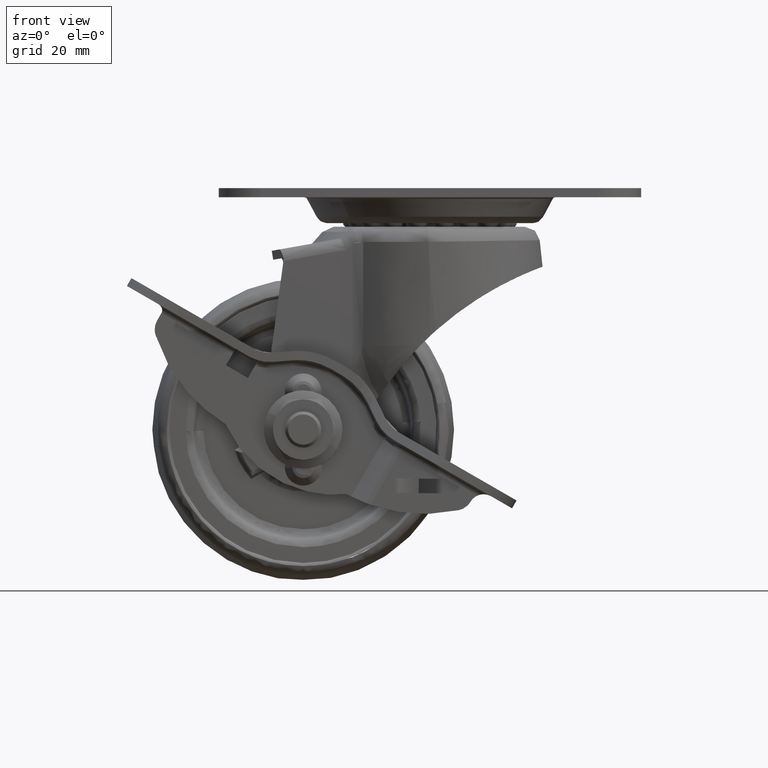
[diagram: clean part render]
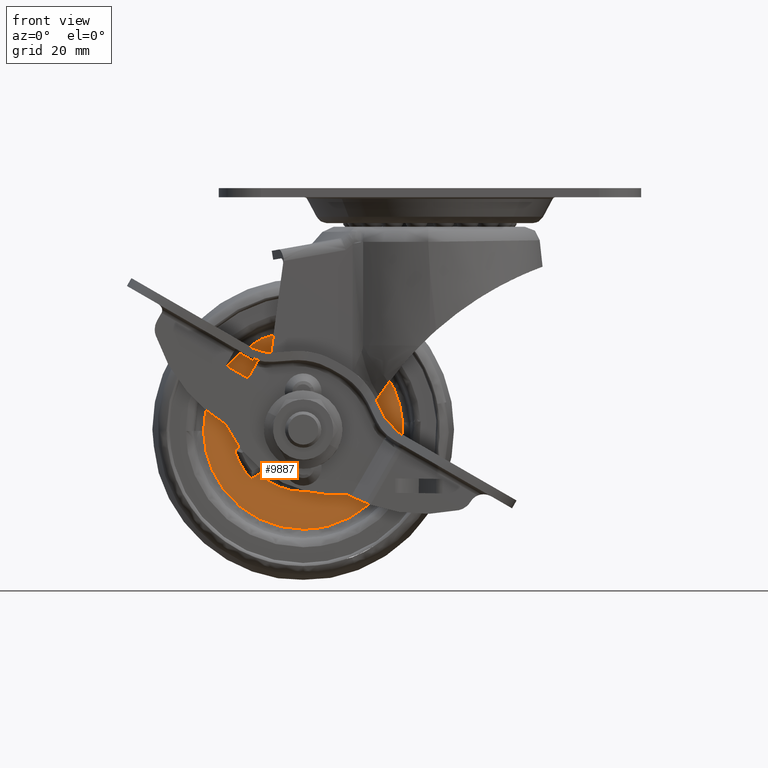
[diagram: same view with one face highlighted and labeled with its STEP entity id]
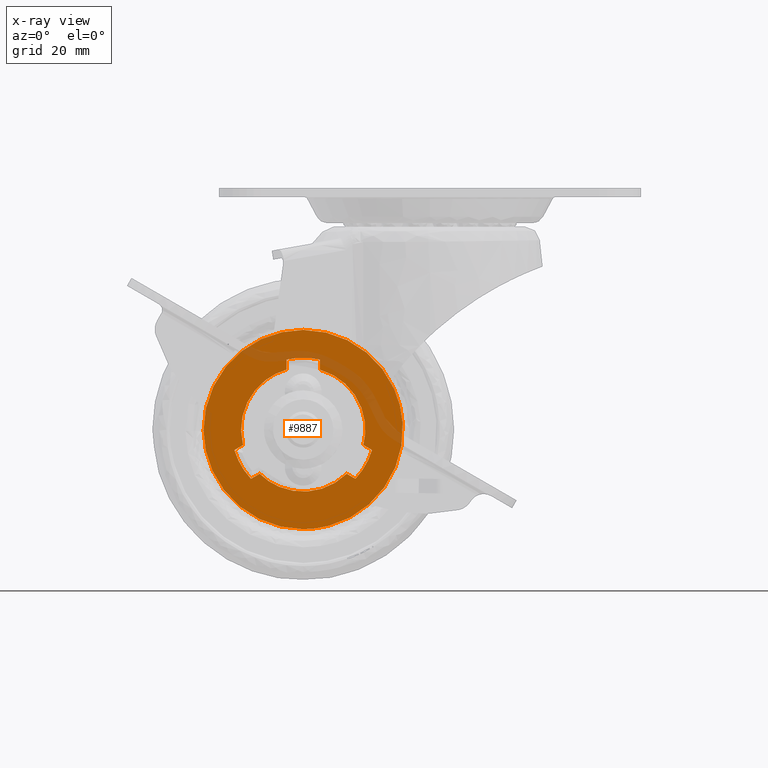
[diagram: x-ray of the same camera — body ghosted, the highlighted face saturated]
A machine part, front view. The second image highlights one B-rep face of the part: STEP entity #9887.
The next image is the same camera in x-ray: the body ghosted, the highlighted face saturated — about 10% of this face is hidden behind the body in this view.
In plain terms, the highlighted face is a freeform B-spline surface patch.
Its self-contained STEP definition (entity closure, byte-faithful):
#2704=CARTESIAN_POINT('',(-4.529568239445082,-5.500000000000000,-37.348660502389961));
#2705=VERTEX_POINT('',#2704);
#2706=CARTESIAN_POINT('',(-21.0,-5.500000000000000,-55.010624000000000));
#2707=VERTEX_POINT('',#2706);
#2708=CARTESIAN_POINT('',(-4.529568239445082,-5.500000000000000,-37.348660502389961));
#2709=CARTESIAN_POINT('',(-4.460597599564533,-5.500000000000008,-38.333797081240370));
#2710=CARTESIAN_POINT('',(-4.493241506175918,-5.499999999999992,-39.962397192461523));
#2711=CARTESIAN_POINT('',(-4.905086064747566,-5.499999999999983,-42.400860710447887));
#2712=CARTESIAN_POINT('',(-5.504628490725648,-5.500000000000058,-44.325987427348423));
#2713=CARTESIAN_POINT('',(-6.411072120631991,-5.499999999999944,-46.318784495756987));
#2714=CARTESIAN_POINT('',(-7.720407261650846,-5.500000000000049,-48.461351878689207));
#2715=CARTESIAN_POINT('',(-9.679324481444626,-5.499999999999964,-50.658695099832450));
#2716=CARTESIAN_POINT('',(-12.158563866516960,-5.500000000000016,-52.545214507012197));
#2717=CARTESIAN_POINT('',(-14.458394638954379,-5.499999999999991,-53.725635179056582));
#2718=CARTESIAN_POINT('',(-17.402730353129630,-5.500000000000013,-54.723834344807017));
#2719=CARTESIAN_POINT('',(-19.518608593575230,-5.500000000000036,-55.011156944525901));
#2720=CARTESIAN_POINT('',(-21.0,-5.500000000000000,-55.010624000000000));
#2721=B_SPLINE_CURVE_WITH_KNOTS('',3,(#2708,#2709,#2710,#2711,#2712,#2713,#2714,#2715,#2716,#2717,#2718,#2719,#2720),.UNSPECIFIED.,.F.,.U.,(4,1,1,1,1,1,1,1,1,1,4),(0.000000092941985,2.962625112459328,4.867208515689441,7.406648055346544,8.993790641163624,11.427426156438210,14.919052701691079,17.775921462710912,20.738601127774320,22.643183113495962,27.087148538172009),.UNSPECIFIED.);
#2722=EDGE_CURVE('',#2705,#2707,#2721,.T.);
#2724=CARTESIAN_POINT('',(-37.509320397508823,-5.500000000000000,-38.707473160194489));
#2725=VERTEX_POINT('',#2724);
#2726=CARTESIAN_POINT('',(-21.0,-5.500000000000000,-55.010624000000000));
#2727=CARTESIAN_POINT('',(-22.172479224277939,-5.500000000000011,-55.010820344088742));
#2728=CARTESIAN_POINT('',(-24.416832838631461,-5.499999999999990,-54.770507167628317));
#2729=CARTESIAN_POINT('',(-27.653923966060979,-5.500000000000015,-53.732246937157100));
#2730=CARTESIAN_POINT('',(-30.326662500615189,-5.499999999999965,-52.232482512722029));
#2731=CARTESIAN_POINT('',(-32.760673267305613,-5.500000000000031,-50.220246156976657));
#2732=CARTESIAN_POINT('',(-34.556307543205357,-5.500000000000157,-48.076787309013177));
#2733=CARTESIAN_POINT('',(-35.792683664852589,-5.499999999999745,-45.921149585764297));
#2734=CARTESIAN_POINT('',(-36.606531450412866,-5.500000000000048,-44.007601039840210));
#2735=CARTESIAN_POINT('',(-37.282735081782711,-5.499999999999986,-41.686226106281730));
#2736=CARTESIAN_POINT('',(-37.495583899709828,-5.500000000000004,-39.812862029528880));
#2737=CARTESIAN_POINT('',(-37.509320397508823,-5.500000000000000,-38.707473160194489));
#2738=B_SPLINE_CURVE_WITH_KNOTS('',3,(#2726,#2727,#2728,#2729,#2730,#2731,#2732,#2733,#2734,#2735,#2736,#2737),.UNSPECIFIED.,.F.,.U.,(4,1,1,1,1,1,1,1,1,4),(0.000000081927759,3.517394175128267,6.733340552359959,10.150287099627549,12.662713188171161,16.180089154446609,18.491554171744230,20.099528810520599,22.410993827818391,25.727388630460339),.UNSPECIFIED.);
#2739=EDGE_CURVE('',#2707,#2725,#2738,.T.);
#2794=CARTESIAN_POINT('',(-21.0,-5.500000000000000,-21.989376000000000));
#2795=VERTEX_POINT('',#2794);
#2796=CARTESIAN_POINT('',(-21.0,-5.500000000000000,-21.989376000000000));
#2797=CARTESIAN_POINT('',(-20.096469618102610,-5.500000000000003,-21.989327604949661));
#2798=CARTESIAN_POINT('',(-19.160691746192491,-5.500000000000004,-22.066334136823659));
#2799=CARTESIAN_POINT('',(-18.206102572400368,-5.499999999999995,-22.227311481892091));
#2800=CARTESIAN_POINT('',(-18.110841994356740,-5.499999999999994,-22.244518556746410));
#2801=CARTESIAN_POINT('',(-17.983718114423709,-5.500000000000026,-22.266881602578732));
#2802=CARTESIAN_POINT('',(-16.969203755283441,-5.500000000000031,-22.459528674058820));
#2803=CARTESIAN_POINT('',(-15.256664919096419,-5.499999999999927,-22.949373854424881));
#2804=CARTESIAN_POINT('',(-13.642300278368650,-5.500000000000044,-23.697299089323909));
#2805=CARTESIAN_POINT('',(-12.881886289191570,-5.500000000000052,-24.122637338946181));
#2806=CARTESIAN_POINT('',(-12.770105967790270,-5.499999999999833,-24.187181184666208));
#2807=CARTESIAN_POINT('',(-12.686048964792731,-5.499999999999994,-24.235193163976842));
#2808=CARTESIAN_POINT('',(-12.212950101333620,-5.499999999999951,-24.512892268827422));
#2809=CARTESIAN_POINT('',(-11.752908333319040,-5.500000000000005,-24.812676799033110));
#2810=CARTESIAN_POINT('',(-11.307801961999260,-5.500000000000001,-25.133333116114780));
#2811=CARTESIAN_POINT('',(-11.229922857191781,-5.500000000000000,-25.190827360780428));
#2812=CARTESIAN_POINT('',(-11.125716129932520,-5.500000000000000,-25.267001021086990));
#2813=CARTESIAN_POINT('',(-10.945325887436651,-5.500000000000001,-25.402966106271080));
#2814=CARTESIAN_POINT('',(-10.741790600117280,-5.500000000000002,-25.561793855725089));
#2815=CARTESIAN_POINT('',(-10.566003832442931,-5.500000000000001,-25.703664815155069));
#2816=CARTESIAN_POINT('',(-10.466797532625190,-5.500000000000004,-25.786243664827818));
#2817=CARTESIAN_POINT('',(-10.392101533397250,-5.499999999999912,-25.847815384590529));
#2818=CARTESIAN_POINT('',(-9.405274048815414,-5.500000000000433,-26.679827497886670));
#2819=CARTESIAN_POINT('',(-7.913529086107672,-5.499999999999723,-28.263243486183281));
#2820=CARTESIAN_POINT('',(-6.359992027422327,-5.500000000000068,-30.728585452552061));
#2821=CARTESIAN_POINT('',(-5.096638412764683,-5.499999999999963,-33.636214198175892));
#2822=CARTESIAN_POINT('',(-4.632525248101384,-5.500000000000015,-35.867800629238253));
#2823=CARTESIAN_POINT('',(-4.529568239445082,-5.500000000000000,-37.348660502389961));
#2824=B_SPLINE_CURVE_WITH_KNOTS('',3,(#2796,#2797,#2798,#2799,#2800,#2801,#2802,#2803,#2804,#2805,#2806,#2807,#2808,#2809,#2810,#2811,#2812,#2813,#2814,#2815,#2816,#2817,#2818,#2819,#2820,#2821,#2822,#2823),.UNSPECIFIED.,.F.,.U.,(4,1,1,1,1,1,1,1,1,1,1,1,1,1,1,1,1,1,1,1,1,1,1,1,1,4),(0.000153530903752,2.710738095740723,2.807528324247024,2.904335671518467,3.001143018789893,3.194757704808211,6.002172694744804,8.325548856804595,8.519163716363313,8.615971142269896,8.712778568176475,8.809568906883811,10.261701218525721,10.358491110881291,10.455299426646450,10.552107742411600,10.745724527185621,11.132958350736510,11.326575258057280,11.423383655578030,11.520192053098780,11.616986492318700,15.295591911125820,18.006197081002121,20.329574624559740,24.782665291464461),.UNSPECIFIED.);
#2825=EDGE_CURVE('',#2795,#2705,#2824,.T.);
#2831=CARTESIAN_POINT('',(-37.509320397508823,-5.500000000000000,-38.707473160194489));
#2832=CARTESIAN_POINT('',(-37.523120474587429,-5.500000000000008,-37.618298304256598));
#2833=CARTESIAN_POINT('',(-37.322344814269613,-5.499999999999965,-35.300911130410050));
#2834=CARTESIAN_POINT('',(-36.341083529769072,-5.500000000000067,-32.090990761684317));
#2835=CARTESIAN_POINT('',(-34.699692853414440,-5.499999999999979,-29.092132419734330));
#2836=CARTESIAN_POINT('',(-32.828265463307361,-5.499999999999963,-26.864574422320452));
#2837=CARTESIAN_POINT('',(-30.562259090814880,-5.500000000000107,-24.948183122553779));
#2838=CARTESIAN_POINT('',(-28.271209994008110,-5.499999999999753,-23.580758000100701));
#2839=CARTESIAN_POINT('',(-25.876327286565161,-5.500000000000120,-22.674465509028380));
#2840=CARTESIAN_POINT('',(-23.518879246535889,-5.499999999999836,-22.125360164073090));
#2841=CARTESIAN_POINT('',(-21.953101063909831,-5.500000000000372,-21.989287602778369));
#2842=CARTESIAN_POINT('',(-21.0,-5.500000000000000,-21.989376000000000));
#2843=B_SPLINE_CURVE_WITH_KNOTS('',3,(#2831,#2832,#2833,#2834,#2835,#2836,#2837,#2838,#2839,#2840,#2841,#2842),.UNSPECIFIED.,.F.,.U.,(4,1,1,1,1,1,1,1,1,4),(0.000000080882916,3.267789890871811,6.944062226706265,10.007633635403220,13.479620078571299,15.624105019034261,18.891927150147151,21.444906618378901,23.283058991306461,26.142347823277849),.UNSPECIFIED.);
#2844=EDGE_CURVE('',#2725,#2795,#2843,.T.);
#7644=CARTESIAN_POINT('',(-29.706230299072200,-5.500000000000000,-46.612428063168103));
#7645=VERTEX_POINT('',#7644);
#7651=CARTESIAN_POINT('',(-29.583068686560999,-5.500000000000000,-46.630858897823700));
#7652=VERTEX_POINT('',#7651);
#7653=CARTESIAN_POINT('',(-29.583068686560999,-5.500000000000000,-46.630858897823700));
#7654=CARTESIAN_POINT('',(-29.604860267143529,-5.499999999999995,-46.643644084722922));
#7655=CARTESIAN_POINT('',(-29.652399125087442,-5.500000000000002,-46.650247932042880));
#7656=CARTESIAN_POINT('',(-29.692906836253510,-5.500000000000007,-46.626821165069558));
#7657=CARTESIAN_POINT('',(-29.706230299072200,-5.500000000000000,-46.612428063168103));
#7658=B_SPLINE_CURVE_WITH_KNOTS('',3,(#7653,#7654,#7655,#7656,#7657),.UNSPECIFIED.,.F.,.U.,(4,1,4),(0.000000131768530,0.075637906487640,0.134468255334676),.UNSPECIFIED.);
#7659=EDGE_CURVE('',#7652,#7645,#7658,.T.);
#7791=CARTESIAN_POINT('',(-12.416935163317859,-5.500000000000000,-46.630865347865800));
#7792=VERTEX_POINT('',#7791);
#7798=CARTESIAN_POINT('',(-12.293773576088601,-5.500000000000000,-46.612434504315097));
#7799=VERTEX_POINT('',#7798);
#7800=CARTESIAN_POINT('',(-12.293773576088601,-5.500000000000000,-46.612434504315097));
#7801=CARTESIAN_POINT('',(-12.303307505662341,-5.499999999999998,-46.622665168749883));
#7802=CARTESIAN_POINT('',(-12.340862529746040,-5.500000000000006,-46.649066447025241));
#7803=CARTESIAN_POINT('',(-12.390283487076641,-5.499999999999984,-46.646733278036443));
#7804=CARTESIAN_POINT('',(-12.416935163317859,-5.500000000000000,-46.630865347865800));
#7805=B_SPLINE_CURVE_WITH_KNOTS('',3,(#7800,#7801,#7802,#7803,#7804),.UNSPECIFIED.,.F.,.U.,(4,1,4),(0.000000131768722,0.042021543084344,0.134468225036740),.UNSPECIFIED.);
#7806=EDGE_CURVE('',#7799,#7792,#7805,.T.);
#7938=CARTESIAN_POINT('',(-9.621316061386569,-5.500000000000000,-41.983602578610302));
#7939=VERTEX_POINT('',#7938);
#7945=CARTESIAN_POINT('',(-9.666935296617478,-5.500000000000000,-41.867726076076750));
#7946=VERTEX_POINT('',#7945);
#7947=CARTESIAN_POINT('',(-9.666935296617478,-5.500000000000000,-41.867726076076750));
#7948=CARTESIAN_POINT('',(-9.644943447875091,-5.500000000000004,-41.880191178425250));
#7949=CARTESIAN_POINT('',(-9.615497305067295,-5.499999999999994,-41.918084665861883));
#7950=CARTESIAN_POINT('',(-9.615514318954354,-5.500000000000003,-41.964866991569266));
#7951=CARTESIAN_POINT('',(-9.621316061386569,-5.500000000000000,-41.983602578610302));
#7952=B_SPLINE_CURVE_WITH_KNOTS('',3,(#7947,#7948,#7949,#7950,#7951),.UNSPECIFIED.,.F.,.U.,(4,1,4),(0.000000131768906,0.075637906487698,0.134468255334753),.UNSPECIFIED.);
#7953=EDGE_CURVE('',#7946,#7939,#7952,.T.);
#8085=CARTESIAN_POINT('',(-32.333068364343497,-5.500000000000000,-41.867719516962751));
#8086=VERTEX_POINT('',#8085);
#8092=CARTESIAN_POINT('',(-32.378687579230053,-5.500000000000000,-41.983596002049097));
#8093=VERTEX_POINT('',#8092);
#8094=CARTESIAN_POINT('',(-32.378687579230053,-5.500000000000000,-41.983596002049097));
#8095=CARTESIAN_POINT('',(-32.384490022405110,-5.500000000000007,-41.964866511233502));
#8096=CARTESIAN_POINT('',(-32.384525498710119,-5.499999999999988,-41.918060920500473));
#8097=CARTESIAN_POINT('',(-32.355036583975739,-5.500000000000004,-41.880201705167210));
#8098=CARTESIAN_POINT('',(-32.333068364343497,-5.500000000000000,-41.867719516962751));
#8099=B_SPLINE_CURVE_WITH_KNOTS('',3,(#8094,#8095,#8096,#8097,#8098),.UNSPECIFIED.,.F.,.U.,(4,1,4),(0.000000131767970,0.058830467359321,0.134468225036739),.UNSPECIFIED.);
#8100=EDGE_CURVE('',#8093,#8086,#8099,.T.);
#8232=CARTESIAN_POINT('',(-23.672453639541200,-5.500000000000000,-26.903969358221651));
#8233=VERTEX_POINT('',#8232);
#8239=CARTESIAN_POINT('',(-23.749996016821498,-5.500000000000000,-27.001415026099600));
#8240=VERTEX_POINT('',#8239);
#8241=CARTESIAN_POINT('',(-23.749996016821498,-5.500000000000000,-27.001415026099600));
#8242=CARTESIAN_POINT('',(-23.750058007951090,-5.499999999999996,-26.981800911314370));
#8243=CARTESIAN_POINT('',(-23.736385900999331,-5.500000000000004,-26.937064312047809));
#8244=CARTESIAN_POINT('',(-23.697124524070929,-5.500000000000000,-26.909454616150029));
#8245=CARTESIAN_POINT('',(-23.672453639541200,-5.500000000000000,-26.903969358221651));
#8246=B_SPLINE_CURVE_WITH_KNOTS('',3,(#8241,#8242,#8243,#8244,#8245),.UNSPECIFIED.,.F.,.U.,(4,1,4),(0.000000131768428,0.058830480615515,0.134468255334747),.UNSPECIFIED.);
#8247=EDGE_CURVE('',#8240,#8233,#8246,.T.);
#8379=CARTESIAN_POINT('',(-18.249996472338651,-5.500000000000000,-27.001415135171399));
#8380=VERTEX_POINT('',#8379);
#8386=CARTESIAN_POINT('',(-18.327538844681399,-5.500000000000000,-26.903969493635799));
#8387=VERTEX_POINT('',#8386);
#8388=CARTESIAN_POINT('',(-18.327538844681399,-5.500000000000000,-26.903969493635799));
#8389=CARTESIAN_POINT('',(-18.308411363339712,-5.499999999999996,-26.908311199790941));
#8390=CARTESIAN_POINT('',(-18.267872483762641,-5.500000000000011,-26.931679289328791));
#8391=CARTESIAN_POINT('',(-18.249818432453282,-5.500000000000001,-26.976149562592092));
#8392=CARTESIAN_POINT('',(-18.249996472338651,-5.500000000000000,-27.001415135171399));
#8393=B_SPLINE_CURVE_WITH_KNOTS('',3,(#8388,#8389,#8390,#8391,#8392),.UNSPECIFIED.,.F.,.U.,(4,1,4),(0.000000131768078,0.058830467359377,0.134468225036748),.UNSPECIFIED.);
#8394=EDGE_CURVE('',#8387,#8380,#8393,.T.);
#9209=CARTESIAN_POINT('',(-29.706230299072200,-5.500000000000000,-46.612428063168103));
#9210=CARTESIAN_POINT('',(-30.165639796308099,-5.500000000000006,-46.119444010100032));
#9211=CARTESIAN_POINT('',(-31.278715527516351,-5.499999999999988,-44.700438542421750));
#9212=CARTESIAN_POINT('',(-32.050382736269768,-5.500000000000008,-43.057711774347737));
#9213=CARTESIAN_POINT('',(-32.378687579230053,-5.500000000000000,-41.983596002049097));
#9214=B_SPLINE_CURVE_WITH_KNOTS('',3,(#9209,#9210,#9211,#9212,#9213),.UNSPECIFIED.,.F.,.U.,(4,1,4),(7.735277E-009,2.021594991586584,5.390905426953950),.UNSPECIFIED.);
#9215=EDGE_CURVE('',#7645,#8093,#9214,.T.);
#9228=CARTESIAN_POINT('',(-30.965894281358452,-5.500000000000000,-41.078381013872502));
#9229=VERTEX_POINT('',#9228);
#9248=CARTESIAN_POINT('',(-30.965894281358452,-5.500000000000000,-41.078381013872502));
#9249=CARTESIAN_POINT('',(-32.333068364343497,-5.500000000000000,-41.867719516962751));
#9250=QUASI_UNIFORM_CURVE('',1,(#9248,#9249),.UNSPECIFIED.,.F.,.U.);
#9251=EDGE_CURVE('',#9229,#8086,#9250,.T.);
#9262=CARTESIAN_POINT('',(-28.215896452423799,-5.500000000000000,-45.841521359214887));
#9263=VERTEX_POINT('',#9262);
#9289=CARTESIAN_POINT('',(-29.583068686560999,-5.500000000000000,-46.630858897823700));
#9290=CARTESIAN_POINT('',(-28.215896452423799,-5.500000000000000,-45.841521359214887));
#9291=QUASI_UNIFORM_CURVE('',1,(#9289,#9290),.UNSPECIFIED.,.F.,.U.);
#9292=EDGE_CURVE('',#7652,#9263,#9291,.T.);
#9440=CARTESIAN_POINT('',(-9.621316061386569,-5.500000000000000,-41.983602578610302));
#9441=CARTESIAN_POINT('',(-9.892346075250901,-5.500000000000010,-42.869651707897518));
#9442=CARTESIAN_POINT('',(-10.620369378806920,-5.499999999999980,-44.525941413096049));
#9443=CARTESIAN_POINT('',(-11.700271410965110,-5.500000000000013,-45.975728885105902));
#9444=CARTESIAN_POINT('',(-12.293773576088601,-5.500000000000000,-46.612434504315097));
#9445=B_SPLINE_CURVE_WITH_KNOTS('',3,(#9440,#9441,#9442,#9443,#9444),.UNSPECIFIED.,.F.,.U.,(4,1,4),(7.736710E-009,2.779671649908597,5.390905426953902),.UNSPECIFIED.);
#9446=EDGE_CURVE('',#7939,#7799,#9445,.T.);
#9459=CARTESIAN_POINT('',(-11.034107774281919,-5.500000000000000,-41.078388959269603));
#9460=VERTEX_POINT('',#9459);
#9486=CARTESIAN_POINT('',(-9.666935296617478,-5.500000000000000,-41.867726076076750));
#9487=CARTESIAN_POINT('',(-11.034107774281919,-5.500000000000000,-41.078388959269603));
#9488=QUASI_UNIFORM_CURVE('',1,(#9486,#9487),.UNSPECIFIED.,.F.,.U.);
#9489=EDGE_CURVE('',#7946,#9460,#9488,.T.);
#9501=CARTESIAN_POINT('',(-13.784109400671699,-5.500000000000000,-45.841527112150203));
#9502=VERTEX_POINT('',#9501);
#9527=CARTESIAN_POINT('',(-13.784109400671699,-5.500000000000000,-45.841527112150203));
#9528=CARTESIAN_POINT('',(-12.416935163317859,-5.500000000000000,-46.630865347865800));
#9529=QUASI_UNIFORM_CURVE('',1,(#9527,#9528),.UNSPECIFIED.,.F.,.U.);
#9530=EDGE_CURVE('',#9502,#7792,#9529,.T.);
#9685=CARTESIAN_POINT('',(-23.672453639541200,-5.500000000000000,-26.903969358221651));
#9686=CARTESIAN_POINT('',(-22.824300713932740,-5.500000000000005,-26.708331237015809));
#9687=CARTESIAN_POINT('',(-21.028792969233010,-5.500000000000002,-26.498008900346850));
#9688=CARTESIAN_POINT('',(-19.230395551957631,-5.500000000000005,-26.695662289620991));
#9689=CARTESIAN_POINT('',(-18.327538844681399,-5.500000000000000,-26.903969493635799));
#9690=B_SPLINE_CURVE_WITH_KNOTS('',3,(#9685,#9686,#9687,#9688,#9689),.UNSPECIFIED.,.F.,.U.,(4,1,4),(7.734215E-009,2.611233784780231,5.390905426953891),.UNSPECIFIED.);
#9691=EDGE_CURVE('',#8233,#8387,#9690,.T.);
#9702=CARTESIAN_POINT('',(-23.749995773294248,-5.500000000000000,-28.580089681515499));
#9703=VERTEX_POINT('',#9702);
#9729=CARTESIAN_POINT('',(-23.749996016821498,-5.500000000000000,-27.001415026099600));
#9730=CARTESIAN_POINT('',(-23.749995773294248,-5.500000000000000,-28.580089681515499));
#9731=QUASI_UNIFORM_CURVE('',1,(#9729,#9730),.UNSPECIFIED.,.F.,.U.);
#9732=EDGE_CURVE('',#8240,#9703,#9731,.T.);
#9744=CARTESIAN_POINT('',(-18.249996317969849,-5.500000000000000,-28.580091873977249));
#9745=VERTEX_POINT('',#9744);
#9769=CARTESIAN_POINT('',(-18.249996317969849,-5.500000000000000,-28.580091873977249));
#9770=CARTESIAN_POINT('',(-18.249996472338651,-5.500000000000000,-27.001415135171399));
#9771=QUASI_UNIFORM_CURVE('',1,(#9769,#9770),.UNSPECIFIED.,.F.,.U.);
#9772=EDGE_CURVE('',#9745,#8380,#9771,.T.);
#9812=CARTESIAN_POINT('',(-13.784109400671699,-5.500000000000000,-45.841527112150203));
#9813=CARTESIAN_POINT('',(-14.259282176310240,-5.500000000000003,-46.308657777646260));
#9814=CARTESIAN_POINT('',(-15.365835798365090,-5.499999999999983,-47.202837302466200));
#9815=CARTESIAN_POINT('',(-16.969224519003010,-5.500000000000040,-48.024087842120480));
#9816=CARTESIAN_POINT('',(-18.598084460635729,-5.499999999999977,-48.544840697914488));
#9817=CARTESIAN_POINT('',(-20.039876366548011,-5.499999999999982,-48.792240129163638));
#9818=CARTESIAN_POINT('',(-21.835299737198788,-5.500000000000033,-48.814071761554459));
#9819=CARTESIAN_POINT('',(-23.404953995678909,-5.499999999999983,-48.554569747274613));
#9820=CARTESIAN_POINT('',(-25.027328392711460,-5.500000000000010,-48.013943638399283));
#9821=CARTESIAN_POINT('',(-26.595463168485232,-5.500000000000019,-47.222820183246299));
#9822=CARTESIAN_POINT('',(-27.681348634600230,-5.499999999999953,-46.367079896235282));
#9823=CARTESIAN_POINT('',(-28.215896452423799,-5.500000000000000,-45.841521359214887));
#9824=B_SPLINE_CURVE_WITH_KNOTS('',3,(#9812,#9813,#9814,#9815,#9816,#9817,#9818,#9819,#9820,#9821,#9822,#9823),.UNSPECIFIED.,.F.,.U.,(4,1,1,1,1,1,1,1,1,4),(0.000000089256421,1.999013905163560,4.247943735377767,5.372417164594829,7.121563357844705,8.620794363455016,10.744781715561830,11.869250147954951,13.743346831861340,15.992255148847869),.UNSPECIFIED.);
#9825=EDGE_CURVE('',#9502,#9263,#9824,.T.);
#9830=CARTESIAN_POINT('',(-39.158572240519582,-5.500000000000000,-20.339964726401579));
#9831=CARTESIAN_POINT('',(-39.158572240519582,-5.500000000000000,-56.660036159297299));
#9832=CARTESIAN_POINT('',(-2.841991970915203,-5.500000000000000,-20.339964726401579));
#9833=CARTESIAN_POINT('',(-2.841991970915203,-5.500000000000000,-56.660036159297299));
#9834=B_SPLINE_SURFACE_WITH_KNOTS('',1,1,((#9830,#9832),(#9831,#9833)),.UNSPECIFIED.,.F.,.F.,.U.,(2,2),(2,2),(0.0,36.320071432895723),(0.0,36.316580269604380),.UNSPECIFIED.);
#9835=ORIENTED_EDGE('',*,*,#2844,.F.);
#9836=ORIENTED_EDGE('',*,*,#2739,.F.);
#9837=ORIENTED_EDGE('',*,*,#2722,.F.);
#9838=ORIENTED_EDGE('',*,*,#2825,.F.);
#9839=EDGE_LOOP('',(#9835,#9836,#9837,#9838));
#9840=FACE_OUTER_BOUND('',#9839,.T.);
#9841=CARTESIAN_POINT('',(-30.965894281358452,-5.500000000000000,-41.078381013872502));
#9842=CARTESIAN_POINT('',(-31.132870314958371,-5.499999999999995,-40.433301850524423));
#9843=CARTESIAN_POINT('',(-31.340889367162230,-5.500000000000009,-39.110591003478199));
#9844=CARTESIAN_POINT('',(-31.266005084271391,-5.499999999999989,-37.145391272567657));
#9845=CARTESIAN_POINT('',(-30.843803572555402,-5.500000000000012,-35.311474264603163));
#9846=CARTESIAN_POINT('',(-30.107517689345070,-5.499999999999960,-33.580725690937307));
#9847=CARTESIAN_POINT('',(-28.999716889319199,-5.500000000000014,-31.905395456696091));
#9848=CARTESIAN_POINT('',(-27.600098214440880,-5.499999999999998,-30.520387434587271));
#9849=CARTESIAN_POINT('',(-25.832118905506270,-5.499999999999998,-29.331387511104548));
#9850=CARTESIAN_POINT('',(-24.552719144422198,-5.500000000000002,-28.802402995528709));
#9851=CARTESIAN_POINT('',(-23.749995773294248,-5.500000000000000,-28.580089681515499));
#9852=B_SPLINE_CURVE_WITH_KNOTS('',3,(#9841,#9842,#9843,#9844,#9845,#9846,#9847,#9848,#9849,#9850,#9851),.UNSPECIFIED.,.F.,.U.,(4,1,1,1,1,1,1,1,4),(0.000000089270319,1.999013905175808,3.998064268515396,5.872175739182818,7.621355909836741,9.620328426249852,11.869250147957590,13.493483880489460,15.992255148847860),.UNSPECIFIED.);
#9853=EDGE_CURVE('',#9229,#9703,#9852,.T.);
#9854=ORIENTED_EDGE('',*,*,#9853,.T.);
#9855=ORIENTED_EDGE('',*,*,#9732,.F.);
#9856=ORIENTED_EDGE('',*,*,#8247,.T.);
#9857=ORIENTED_EDGE('',*,*,#9691,.T.);
#9858=ORIENTED_EDGE('',*,*,#8394,.T.);
#9859=ORIENTED_EDGE('',*,*,#9772,.F.);
#9860=CARTESIAN_POINT('',(-18.249996317969849,-5.500000000000000,-28.580091873977249));
#9861=CARTESIAN_POINT('',(-17.607853800227971,-5.500000000000003,-28.758023287819480));
#9862=CARTESIAN_POINT('',(-16.475496957804079,-5.499999999999998,-29.194146534147450));
#9863=CARTESIAN_POINT('',(-14.866448910501640,-5.500000000000000,-30.166306994495461));
#9864=CARTESIAN_POINT('',(-13.513145611970661,-5.500000000000016,-31.352016057135451));
#9865=CARTESIAN_POINT('',(-12.424115735105399,-5.499999999999976,-32.728853650114210));
#9866=CARTESIAN_POINT('',(-11.586187743934831,-5.500000000000012,-34.221797861760983));
#9867=CARTESIAN_POINT('',(-10.916397942970450,-5.499999999999959,-36.069673345166542));
#9868=CARTESIAN_POINT('',(-10.594141805406521,-5.500000000000148,-38.439231632409353));
#9869=CARTESIAN_POINT('',(-10.804319820255650,-5.499999999999818,-40.191427982803049));
#9870=CARTESIAN_POINT('',(-11.034107774281919,-5.500000000000000,-41.078388959269603));
#9871=B_SPLINE_CURVE_WITH_KNOTS('',3,(#9860,#9861,#9862,#9863,#9864,#9865,#9866,#9867,#9868,#9869,#9870),.UNSPECIFIED.,.F.,.U.,(4,1,1,1,1,1,1,1,4),(0.000000089268315,1.999013905174129,3.623244151870480,5.622285063265579,7.371462254979896,8.870688635539947,10.744781715565260,13.243601048737380,15.992255148847891),.UNSPECIFIED.);
#9872=EDGE_CURVE('',#9745,#9460,#9871,.T.);
#9873=ORIENTED_EDGE('',*,*,#9872,.T.);
#9874=ORIENTED_EDGE('',*,*,#9489,.F.);
#9875=ORIENTED_EDGE('',*,*,#7953,.T.);
#9876=ORIENTED_EDGE('',*,*,#9446,.T.);
#9877=ORIENTED_EDGE('',*,*,#7806,.T.);
#9878=ORIENTED_EDGE('',*,*,#9530,.F.);
#9879=ORIENTED_EDGE('',*,*,#9825,.T.);
#9880=ORIENTED_EDGE('',*,*,#9292,.F.);
#9881=ORIENTED_EDGE('',*,*,#7659,.T.);
#9882=ORIENTED_EDGE('',*,*,#9215,.T.);
#9883=ORIENTED_EDGE('',*,*,#8100,.T.);
#9884=ORIENTED_EDGE('',*,*,#9251,.F.);
#9885=EDGE_LOOP('',(#9854,#9855,#9856,#9857,#9858,#9859,#9873,#9874,#9875,#9876,#9877,#9878,#9879,#9880,#9881,#9882,#9883,#9884));
#9886=FACE_BOUND('',#9885,.T.);
#9887=ADVANCED_FACE('',(#9840,#9886),#9834,.T.);